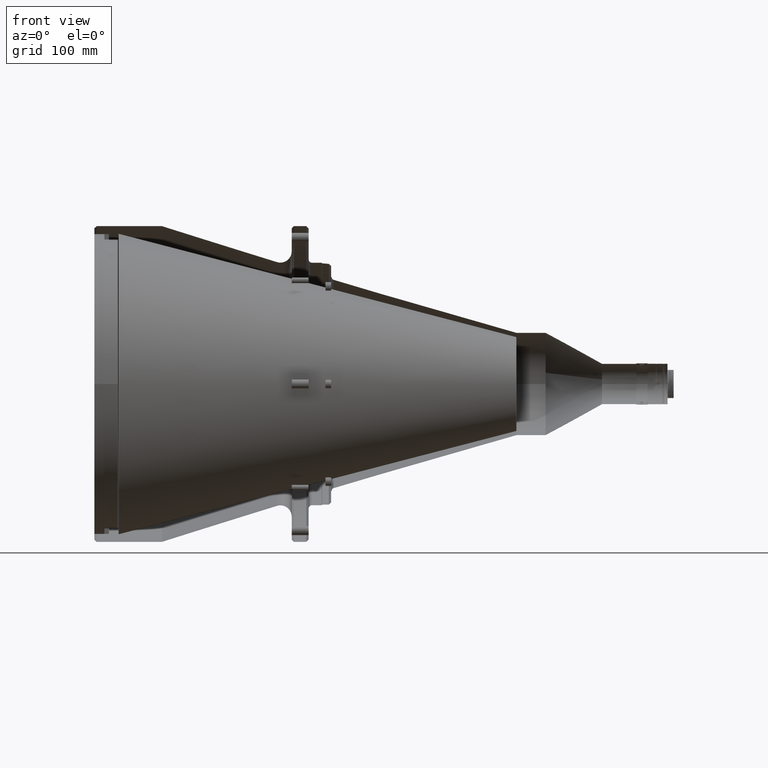
[diagram: clean part render]
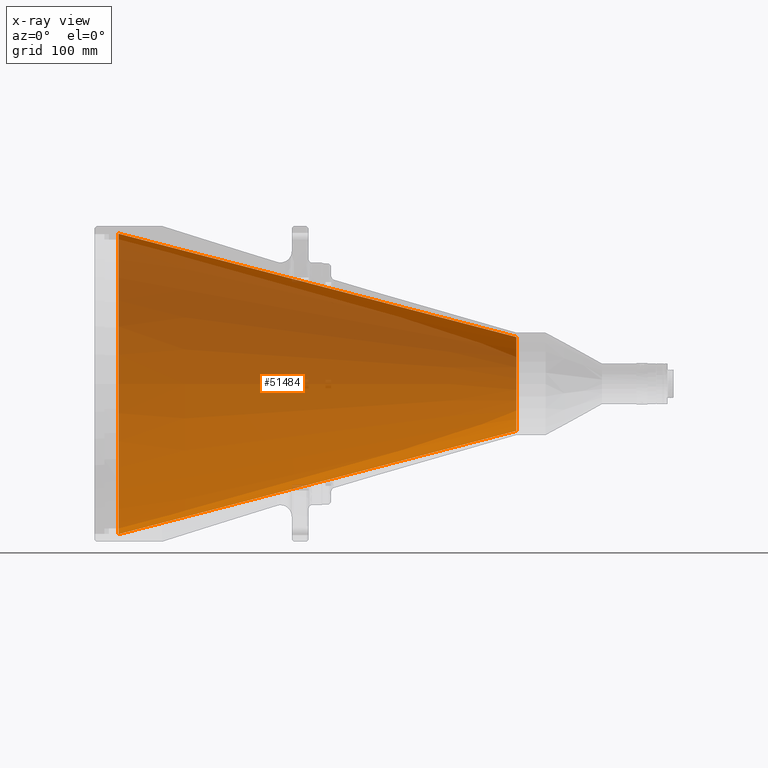
[diagram: x-ray — body ghosted, one internal face saturated and labeled with its STEP entity id]
A machine part, front view, then the same camera in x-ray: the body is ghosted and one INTERNAL B-rep face — a face not visible from any outside direction — is saturated and labeled: STEP entity #51484.
In plain terms, the highlighted conical surface has half-angle 14.563 deg.
Its self-contained STEP definition (entity closure, byte-faithful):
#1065 = ORIENTED_EDGE ( 'NONE', *, *, #8502, .T. ) ;
#2240 = EDGE_LOOP ( 'NONE', ( #41062, #1065, #10694, #27440 ) ) ;
#5056 = VERTEX_POINT ( 'NONE', #36110 ) ;
#5555 = EDGE_CURVE ( 'NONE', #44064, #30905, #24552, .T. ) ;
#8502 = EDGE_CURVE ( 'NONE', #5056, #13357, #39604, .T. ) ;
#10694 = ORIENTED_EDGE ( 'NONE', *, *, #16814, .T. ) ;
#13170 = CARTESIAN_POINT ( 'NONE',  ( 374.2375000000000114, 0.000000000000000000, 41.59546966889259778 ) ) ;
#13357 = VERTEX_POINT ( 'NONE', #33607 ) ;
#16814 = EDGE_CURVE ( 'NONE', #13357, #30905, #39241, .T. ) ;
#17318 = DIRECTION ( 'NONE',  ( 0.000000000000000000, -2.077518719324119976E-12, 1.000000000000000000 ) ) ;
#17812 = VECTOR ( 'NONE', #28840, 1000.000000000000000 ) ;
#18204 = CIRCLE ( 'NONE', #24215, 41.59546966889259778 ) ;
#18972 = DIRECTION ( 'NONE',  ( -0.9678735052955765861, 5.223971586332568368E-13, -0.2514376219797934131 ) ) ;
#24215 = AXIS2_PLACEMENT_3D ( 'NONE', #50741, #30065, #34632 ) ;
#24552 = LINE ( 'NONE', #40915, #17812 ) ;
#25848 = DIRECTION ( 'NONE',  ( 0.000000000000000000, -2.077518719324119976E-12, 1.000000000000000000 ) ) ;
#26117 = CARTESIAN_POINT ( 'NONE',  ( 21.53615611300000054, 1.972152263052529864E-30, 0.000000000000000000 ) ) ;
#27440 = ORIENTED_EDGE ( 'NONE', *, *, #5555, .F. ) ;
#28840 = DIRECTION ( 'NONE',  ( -0.9678735052955765861, -5.223663664053626613E-13, 0.2514376219797934131 ) ) ;
#30065 = DIRECTION ( 'NONE',  ( -1.000000000000000000, 0.000000000000000000, 0.000000000000000000 ) ) ;
#30905 = VERTEX_POINT ( 'NONE', #51666 ) ;
#33607 = CARTESIAN_POINT ( 'NONE',  ( 21.53615611300000054, 2.767864321123791456E-10, -133.2214793600479936 ) ) ;
#33807 = AXIS2_PLACEMENT_3D ( 'NONE', #46809, #38490, #17318 ) ;
#34632 = DIRECTION ( 'NONE',  ( 0.000000000000000000, 0.000000000000000000, 1.000000000000000000 ) ) ;
#34716 = DIRECTION ( 'NONE',  ( 1.000000000000000000, 0.000000000000000000, 0.000000000000000000 ) ) ;
#34744 = FACE_OUTER_BOUND ( 'NONE', #2240, .T. ) ;
#36110 = CARTESIAN_POINT ( 'NONE',  ( 374.2375000000000114, 1.816034464822300222E-10, -41.59546966889259778 ) ) ;
#36414 = CONICAL_SURFACE ( 'NONE', #33807, 133.2214793600479936, 0.2541653099984720887 ) ;
#37661 = EDGE_CURVE ( 'NONE', #44064, #5056, #18204, .T. ) ;
#38490 = DIRECTION ( 'NONE',  ( -1.000000000000000000, 0.000000000000000000, 0.000000000000000000 ) ) ;
#39241 = CIRCLE ( 'NONE', #51258, 133.2214793600479936 ) ;
#39346 = CARTESIAN_POINT ( 'NONE',  ( 21.53615611300000054, 2.767864321123791456E-10, -133.2214793600479936 ) ) ;
#39604 = LINE ( 'NONE', #39346, #48591 ) ;
#40915 = CARTESIAN_POINT ( 'NONE',  ( 21.53615611300000054, -2.767701171865516145E-10, 133.2214793600479936 ) ) ;
#41062 = ORIENTED_EDGE ( 'NONE', *, *, #37661, .T. ) ;
#44064 = VERTEX_POINT ( 'NONE', #13170 ) ;
#46809 = CARTESIAN_POINT ( 'NONE',  ( 21.53615611300000054, 1.972152263052529864E-30, 0.000000000000000000 ) ) ;
#48591 = VECTOR ( 'NONE', #18972, 1000.000000000000000 ) ;
#50741 = CARTESIAN_POINT ( 'NONE',  ( 374.2375000000000114, 0.000000000000000000, 0.000000000000000000 ) ) ;
#51258 = AXIS2_PLACEMENT_3D ( 'NONE', #26117, #34716, #25848 ) ;
#51484 = ADVANCED_FACE ( 'NONE', ( #34744 ), #36414, .T. ) ;
#51666 = CARTESIAN_POINT ( 'NONE',  ( 21.53615611300000054, -2.767701171865516145E-10, 133.2214793600479936 ) ) ;